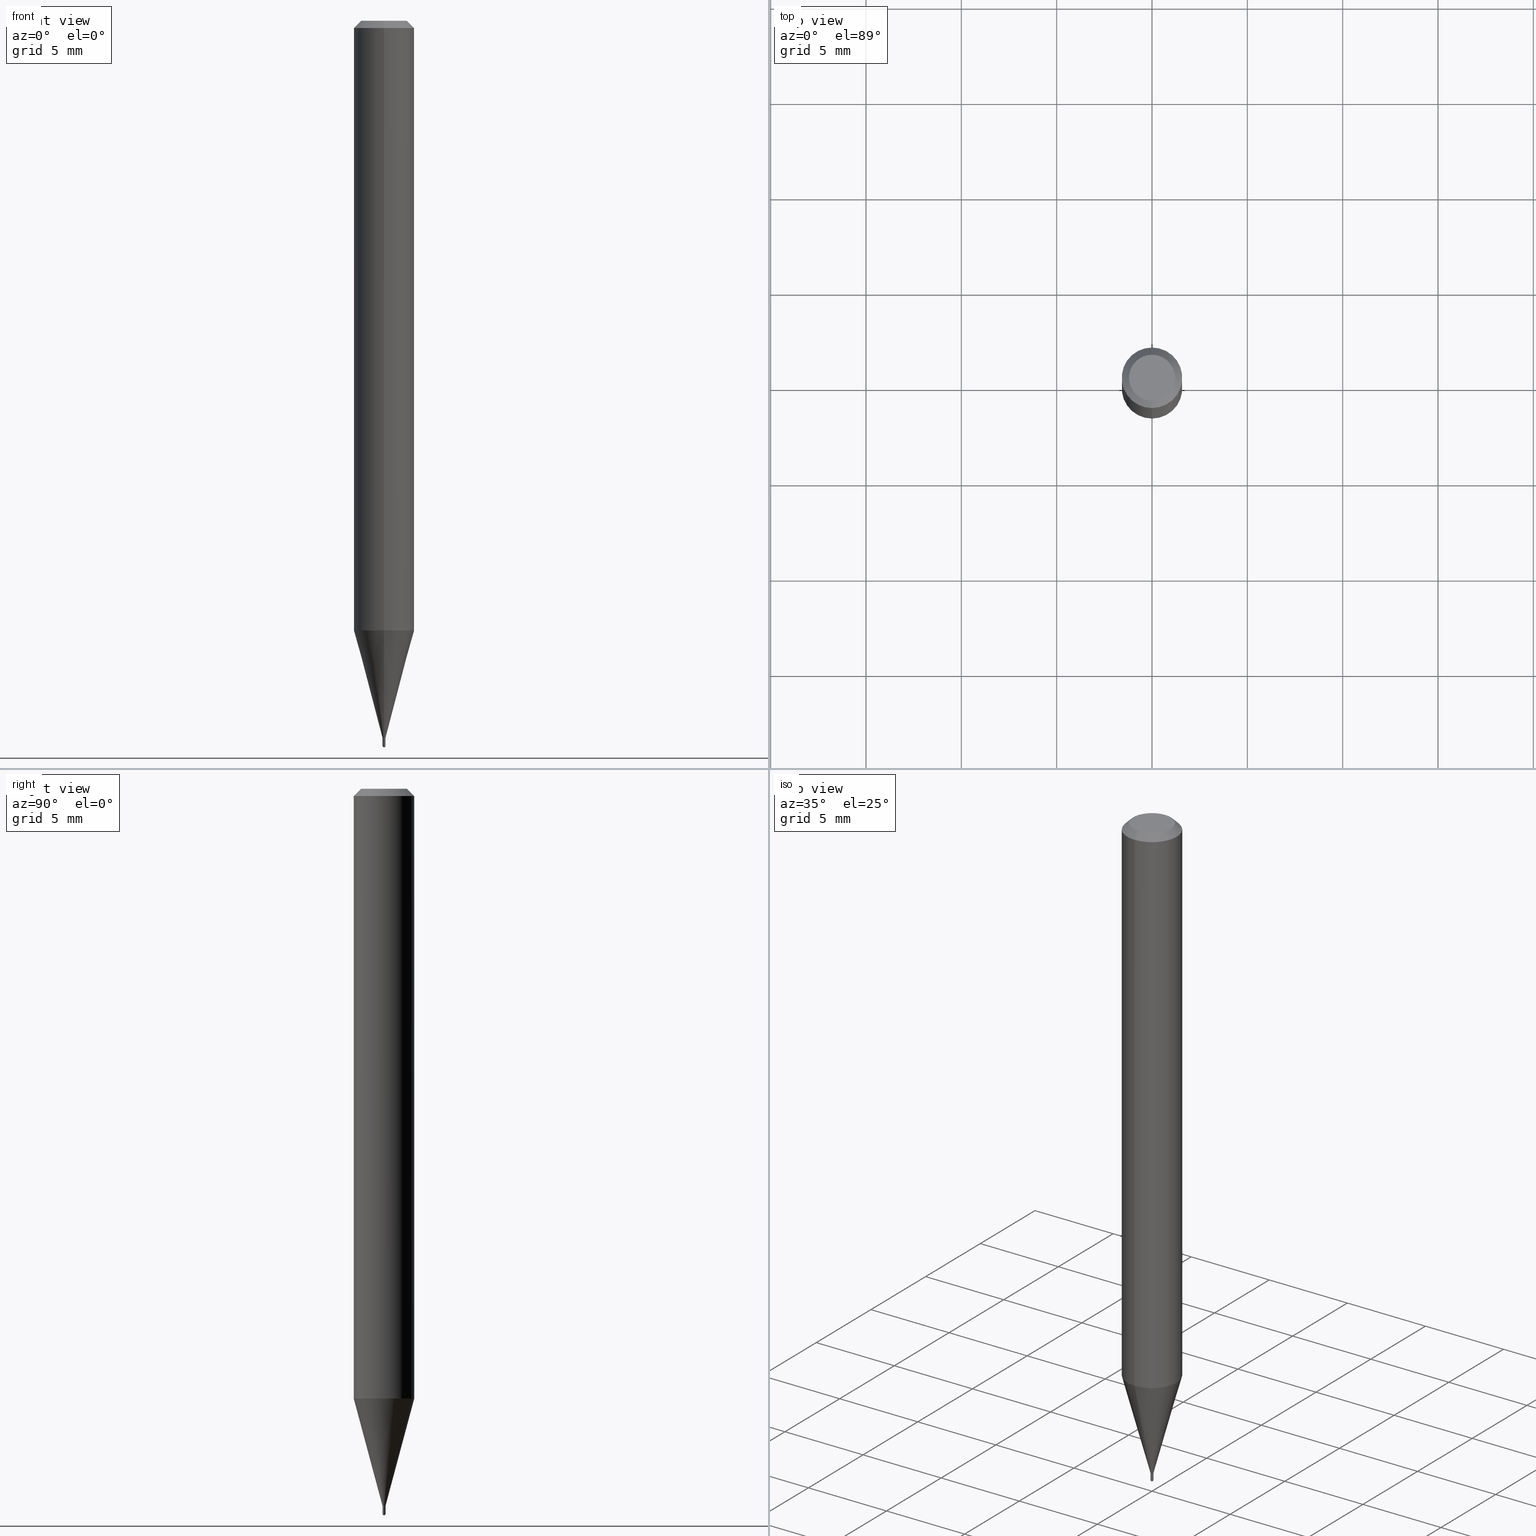
[diagram: canonical four-view strip — front | top / right | iso, engineering-drawing reading convention]
A machine part, canonical four-view strip (front | top / right | iso — engineering-drawing reading convention). The complete STEP part file that produces these views, byte-faithful:
ISO-10303-21;
HEADER;
FILE_DESCRIPTION (( 'STEP AP203' ),
    '1' );
FILE_NAME ('00670.STEP',
    '2024-03-07T18:00:03',
    ( '' ),
    ( '' ),
    'SwSTEP 2.0',
    'SolidWorks 2023',
    '' );
FILE_SCHEMA (( 'CONFIG_CONTROL_DESIGN' ));
ENDSEC;

DATA;
#1 = VERTEX_POINT ( 'NONE', #365 ) ;
#2 = ADVANCED_FACE ( 'NONE', ( #293 ), #71, .T. ) ;
#3 = PERSON_AND_ORGANIZATION ( #469, #131 ) ;
#4 = LINE ( 'NONE', #49, #209 ) ;
#5 = DIRECTION ( 'NONE',  ( -2.445474316170176047E-29, 3.491473448230960175E-15, 1.000000000000000000 ) ) ;
#6 = EDGE_CURVE ( 'NONE', #330, #99, #444, .T. ) ;
#7 = CC_DESIGN_APPROVAL ( #362, ( #429 ) ) ;
#8 = PERSON_AND_ORGANIZATION ( #469, #131 ) ;
#9 = DIRECTION ( 'NONE',  ( -2.445474316170176047E-29, 3.491473448230960175E-15, 1.000000000000000000 ) ) ;
#10 = COORDINATED_UNIVERSAL_TIME_OFFSET ( 5, 0, .BEHIND. ) ;
#11 = ORIENTED_EDGE ( 'NONE', *, *, #162, .F. ) ;
#12 = CARTESIAN_POINT ( 'NONE',  ( 0.003000000000000000496, -2.094888803305880395E-17, 1.462853032738780834E-31 ) ) ;
#13 = SPHERICAL_SURFACE ( 'NONE', #159, 0.002999999999999970572 ) ;
#14 = CIRCLE ( 'NONE', #306, 0.003000000000000000062 ) ;
#15 = AXIS2_PLACEMENT_3D ( 'NONE', #277, #82, #388 ) ;
#16 = VERTEX_POINT ( 'NONE', #298 ) ;
#17 = CARTESIAN_POINT ( 'NONE',  ( 3.646202205409732570E-29, -5.205786911312362704E-15, -1.491000000000000103 ) ) ;
#18 = ORIENTED_EDGE ( 'NONE', *, *, #222, .T. ) ;
#19 = CARTESIAN_POINT ( 'NONE',  ( 3.660866802859150889E-29, -5.226747564248190733E-15, -1.497000000000000552 ) ) ;
#20 = DIRECTION ( 'NONE',  ( -2.445474316170176327E-29, 3.491473448230960570E-15, 1.000000000000000000 ) ) ;
#21 = FACE_OUTER_BOUND ( 'NONE', #370, .T. ) ;
#22 = ORIENTED_EDGE ( 'NONE', *, *, #258, .T. ) ;
#23 = FACE_OUTER_BOUND ( 'NONE', #470, .T. ) ;
#24 = DIRECTION ( 'NONE',  ( -6.982962677686264344E-15, -1.000000000000000000, 0.000000000000000000 ) ) ;
#25 = DIRECTION ( 'NONE',  ( -6.982962677686265922E-15, -1.000000000000000000, 0.000000000000000000 ) ) ;
#26 = ORIENTED_EDGE ( 'NONE', *, *, #311, .F. ) ;
#27 = CIRCLE ( 'NONE', #247, 0.002999999999999924602 ) ;
#28 = CONICAL_SURFACE ( 'NONE', #320, 0.06250000000000000000, 0.7853981633974483900 ) ;
#29 = EDGE_CURVE ( 'NONE', #292, #197, #105, .T. ) ;
#30 = FACE_OUTER_BOUND ( 'NONE', #219, .T. ) ;
#31 = DIRECTION ( 'NONE',  ( -2.445468806185136597E-29, 3.491481338843145583E-15, 1.000000000000000000 ) ) ;
#32 = ORIENTED_EDGE ( 'NONE', *, *, #295, .F. ) ;
#33 = DIRECTION ( 'NONE',  ( -4.851104656540964275E-15, -0.7071067811865500152, -0.7071067811865450192 ) ) ;
#34 = CYLINDRICAL_SURFACE ( 'NONE', #450, 0.06250000000000000000 ) ;
#35 = CARTESIAN_POINT ( 'NONE',  ( 0.000000000000000000, 0.000000000000000000, 0.000000000000000000 ) ) ;
#36 = CYLINDRICAL_SURFACE ( 'NONE', #396, 0.003000000000000000496 ) ;
#37 = APPROVAL ( #246, 'UNSPECIFIED' ) ;
#38 = CONICAL_SURFACE ( 'NONE', #90, 0.002500000000000000052, 0.7853981633974739252 ) ;
#39 = LINE ( 'NONE', #86, #260 ) ;
#40 = CIRCLE ( 'NONE', #150, 0.003000000000000000496 ) ;
#41 = DIRECTION ( 'NONE',  ( -2.445474316170176047E-29, 3.491473448230960175E-15, 1.000000000000000000 ) ) ;
#42 = ORIENTED_EDGE ( 'NONE', *, *, #6, .F. ) ;
#43 = ADVANCED_FACE ( 'NONE', ( #23 ), #180, .T. ) ;
#44 = DIRECTION ( 'NONE',  ( -6.982962677686264344E-15, -1.000000000000000000, 0.000000000000000000 ) ) ;
#45 = ORIENTED_EDGE ( 'NONE', *, *, #215, .T. ) ;
#46 = CALENDAR_DATE ( 2024, 7, 3 ) ;
#47 = CARTESIAN_POINT ( 'NONE',  ( 2.131628207280246368E-17, 0.002999999999999924168, -1.047442034469261669E-17 ) ) ;
#48 = CARTESIAN_POINT ( 'NONE',  ( 3.621747462248030591E-29, -5.170872176830052333E-15, -1.481000000000000094 ) ) ;
#49 = CARTESIAN_POINT ( 'NONE',  ( -2.094888803302204488E-17, -0.003000000000005094512, -1.481000000000000094 ) ) ;
#50 = DATE_TIME_ROLE ( 'creation_date' ) ;
#51 = CARTESIAN_POINT ( 'NONE',  ( -3.773273898774340269E-16, -0.04749999999999999362, 1.569842943950606882E-16 ) ) ;
#52 = DIRECTION ( 'NONE',  ( -1.807323732225330928E-15, -0.2588190451025182970, 0.9659258262890689783 ) ) ;
#53 = AXIS2_PLACEMENT_3D ( 'NONE', #137, #223, #25 ) ;
#54 = APPROVAL_DATE_TIME ( #483, #37 ) ;
#55 = PERSON_AND_ORGANIZATION_ROLE ( 'design_supplier' ) ;
#56 = CIRCLE ( 'NONE', #160, 0.003000000000000000062 ) ;
#57 = ADVANCED_FACE ( 'NONE', ( #467 ), #352, .F. ) ;
#58 = CC_DESIGN_PERSON_AND_ORGANIZATION_ASSIGNMENT ( #92, #285, ( #427 ) ) ;
#59 = DIRECTION ( 'NONE',  ( -6.982962677686265922E-15, -1.000000000000000000, 4.370956789862821150E-15 ) ) ;
#60 = EDGE_CURVE ( 'NONE', #176, #330, #39, .T. ) ;
#61 = ORIENTED_EDGE ( 'NONE', *, *, #282, .T. ) ;
#62 = CIRCLE ( 'NONE', #319, 0.06250000000000000000 ) ;
#63 = VECTOR ( 'NONE', #419, 39.37007874015748143 ) ;
#64 = VERTEX_POINT ( 'NONE', #51 ) ;
#65 = DIRECTION ( 'NONE',  ( 6.982962677686265922E-15, 1.000000000000000000, -3.483106191921935554E-15 ) ) ;
#66 = VERTEX_POINT ( 'NONE', #478 ) ;
#67 = CARTESIAN_POINT ( 'NONE',  ( -0.003000000000000000496, 2.131628207280300910E-17, -1.475680527076472188E-31 ) ) ;
#68 = CARTESIAN_POINT ( 'NONE',  ( 1.776356839403896518E-17, 0.002499999999994794147, -1.491000000000000103 ) ) ;
#69 = DIRECTION ( 'NONE',  ( 1.000000000000000000, -6.982962677686332186E-15, 0.000000000000000000 ) ) ;
#70 = ORIENTED_EDGE ( 'NONE', *, *, #415, .T. ) ;
#71 = CYLINDRICAL_SURFACE ( 'NONE', #426, 0.06250000000000000000 ) ;
#72 = CARTESIAN_POINT ( 'NONE',  ( 3.660610252972396344E-29, -5.227114958287934137E-15, -1.497000000000000108 ) ) ;
#73 = DIRECTION ( 'NONE',  ( -6.982962677686265922E-15, -1.000000000000000000, 3.483106191921935554E-15 ) ) ;
#74 = LINE ( 'NONE', #218, #149 ) ;
#75 = VERTEX_POINT ( 'NONE', #372 ) ;
#76 = VECTOR ( 'NONE', #20, 39.37007874015748143 ) ;
#77 = CIRCLE ( 'NONE', #104, 0.06250000000000000000 ) ;
#78 = DIRECTION ( 'NONE',  ( -6.982962677686265922E-15, -1.000000000000000000, 4.370956789862821150E-15 ) ) ;
#79 = ORIENTED_EDGE ( 'NONE', *, *, #496, .T. ) ;
#80 = FACE_OUTER_BOUND ( 'NONE', #134, .T. ) ;
#81 = CARTESIAN_POINT ( 'NONE',  ( 3.646202205409732570E-29, -5.205786911312362704E-15, -1.491000000000000103 ) ) ;
#82 = DIRECTION ( 'NONE',  ( 2.445474316170175487E-29, -3.491473448230960570E-15, -1.000000000000000000 ) ) ;
#83 = ORIENTED_EDGE ( 'NONE', *, *, #181, .F. ) ;
#84 = ADVANCED_FACE ( 'NONE', ( #374 ), #472, .T. ) ;
#85 = CIRCLE ( 'NONE', #242, 0.06250000000000000000 ) ;
#86 = CARTESIAN_POINT ( 'NONE',  ( -1.745740669417920106E-17, -0.002500000000005205957, -1.491000000000000103 ) ) ;
#87 = CONICAL_SURFACE ( 'NONE', #473, 0.06250000000000000000, 0.7853981633974483900 ) ;
#88 = CARTESIAN_POINT ( 'NONE',  ( 3.668074934334328744E-29, -5.237405705284591851E-15, -1.500000000000000222 ) ) ;
#89 = EDGE_CURVE ( 'NONE', #75, #382, #421, .T. ) ;
#90 = AXIS2_PLACEMENT_3D ( 'NONE', #274, #310, #269 ) ;
#91 = PERSON_AND_ORGANIZATION ( #469, #131 ) ;
#92 = PERSON_AND_ORGANIZATION ( #469, #131 ) ;
#93 = EDGE_CURVE ( 'NONE', #64, #382, #379, .T. ) ;
#94 = SHAPE_DEFINITION_REPRESENTATION ( #100, #248 ) ;
#95 = CIRCLE ( 'NONE', #400, 0.002500000000000000052 ) ;
#96 = LINE ( 'NONE', #67, #323 ) ;
#97 = DIRECTION ( 'NONE',  ( 1.839019923739601104E-15, 0.2588190451025250693, 0.9659258262890670910 ) ) ;
#98 = DIRECTION ( 'NONE',  ( -7.105427357601001070E-15, -1.000000000000000000, 0.000000000000000000 ) ) ;
#99 = VERTEX_POINT ( 'NONE', #153 ) ;
#100 = PRODUCT_DEFINITION_SHAPE ( 'NONE', 'NONE',  #429 ) ;
#101 = DIRECTION ( 'NONE',  ( -2.445468806185136597E-29, 3.491481338843145583E-15, 1.000000000000000000 ) ) ;
#102 = VECTOR ( 'NONE', #97, 39.37007874015748143 ) ;
#103 = DIRECTION ( 'NONE',  ( 1.000000000000000000, -6.982962677686331397E-15, 0.000000000000000000 ) ) ;
#104 = AXIS2_PLACEMENT_3D ( 'NONE', #214, #249, #59 ) ;
#105 = LINE ( 'NONE', #68, #405 ) ;
#106 = DIRECTION ( 'NONE',  ( -2.445474316170176047E-29, 3.491473448230960175E-15, 1.000000000000000000 ) ) ;
#107 = ADVANCED_FACE ( 'NONE', ( #476 ), #38, .T. ) ;
#108 = CARTESIAN_POINT ( 'NONE',  ( 3.660610252972396344E-29, -5.227114958287934137E-15, -1.497000000000000108 ) ) ;
#109 = ORIENTED_EDGE ( 'NONE', *, *, #486, .F. ) ;
#110 = LINE ( 'NONE', #12, #63 ) ;
#111 = ORIENTED_EDGE ( 'NONE', *, *, #145, .F. ) ;
#112 = EDGE_LOOP ( 'NONE', ( #503, #213, #318, #460 ) ) ;
#113 = AXIS2_PLACEMENT_3D ( 'NONE', #17, #182, #139 ) ;
#114 = AXIS2_PLACEMENT_3D ( 'NONE', #229, #510, #341 ) ;
#115 = DIRECTION ( 'NONE',  ( -2.445468806185136597E-29, 3.491481338843145583E-15, 1.000000000000000000 ) ) ;
#116 = DIRECTION ( 'NONE',  ( -2.445474316170176047E-29, 3.491473448230960175E-15, 1.000000000000000000 ) ) ;
#117 = EDGE_CURVE ( 'NONE', #197, #330, #27, .T. ) ;
#118 = PERSON_AND_ORGANIZATION ( #469, #131 ) ;
#119 = ORIENTED_EDGE ( 'NONE', *, *, #125, .F. ) ;
#120 = EDGE_LOOP ( 'NONE', ( #193, #45, #111, #83 ) ) ;
#121 = CALENDAR_DATE ( 2024, 7, 3 ) ;
#122 = CLOSED_SHELL ( 'NONE', ( #265, #165, #307, #284, #395 ) ) ;
#123 = CIRCLE ( 'NONE', #418, 0.002999999999999970572 ) ;
#124 = ORIENTED_EDGE ( 'NONE', *, *, #441, .T. ) ;
#125 = EDGE_CURVE ( 'NONE', #197, #381, #239, .T. ) ;
#126 = DIRECTION ( 'NONE',  ( -2.445474316170176047E-29, 3.491473448230960175E-15, 1.000000000000000000 ) ) ;
#127 = CARTESIAN_POINT ( 'NONE',  ( -0.003000000000000000062, -5.194956838158857898E-15, -1.491000000000000103 ) ) ;
#128 = DATE_AND_TIME ( #244, #451 ) ;
#129 = CARTESIAN_POINT ( 'NONE',  ( 2.131628207283867732E-17, 0.002999999999994752958, -1.481000000000000094 ) ) ;
#130 = VECTOR ( 'NONE', #458, 39.37007874015748143 ) ;
#131 = ORGANIZATION ( 'UNSPECIFIED', 'UNSPECIFIED', '' ) ;
#132 = APPLICATION_CONTEXT ( 'configuration controlled 3d designs of mechanical parts and assemblies' ) ;
#133 = CARTESIAN_POINT ( 'NONE',  ( 3.646193990022038953E-29, -5.205798676215130324E-15, -1.491000000000000103 ) ) ;
#134 = EDGE_LOOP ( 'NONE', ( #232, #491, #490, #257 ) ) ;
#135 = CARTESIAN_POINT ( 'NONE',  ( 3.660610252972396344E-29, -5.227114958287934137E-15, -1.497000000000000108 ) ) ;
#136 = CARTESIAN_POINT ( 'NONE',  ( -2.094888803305826777E-17, -0.002999999999999924168, 1.047442034469261669E-17 ) ) ;
#137 = CARTESIAN_POINT ( 'NONE',  ( 3.646202205409732570E-29, -5.205786911312362704E-15, -1.491000000000000103 ) ) ;
#138 = CONICAL_SURFACE ( 'NONE', #53, 0.002500000000000000052, 0.7853981633974739252 ) ;
#139 = DIRECTION ( 'NONE',  ( -6.982962677686265922E-15, -1.000000000000000000, 0.000000000000000000 ) ) ;
#140 = EDGE_CURVE ( 'NONE', #66, #75, #62, .T. ) ;
#141 = FACE_OUTER_BOUND ( 'NONE', #268, .T. ) ;
#142 = EDGE_LOOP ( 'NONE', ( #261, #313, #22, #26 ) ) ;
#143 = FACE_OUTER_BOUND ( 'NONE', #155, .T. ) ;
#144 = EDGE_LOOP ( 'NONE', ( #432, #347 ) ) ;
#145 = EDGE_CURVE ( 'NONE', #16, #1, #287, .T. ) ;
#146 = DIRECTION ( 'NONE',  ( -2.445474316170175487E-29, 3.491473448230960570E-15, 1.000000000000000000 ) ) ;
#147 = DATE_AND_TIME ( #121, #234 ) ;
#148 = ORIENTED_EDGE ( 'NONE', *, *, #245, .F. ) ;
#149 = VECTOR ( 'NONE', #303, 39.37007874015748143 ) ;
#150 = AXIS2_PLACEMENT_3D ( 'NONE', #158, #200, #203 ) ;
#151 =( CONVERSION_BASED_UNIT ( 'INCH', #512 ) LENGTH_UNIT ( ) NAMED_UNIT ( #337 ) );
#152 = ORIENTED_EDGE ( 'NONE', *, *, #474, .T. ) ;
#153 = CARTESIAN_POINT ( 'NONE',  ( -2.094888803302204488E-17, -0.003000000000005094512, -1.481000000000000094 ) ) ;
#154 = DIRECTION ( 'NONE',  ( -6.982962677686264344E-15, -1.000000000000000000, 0.000000000000000000 ) ) ;
#155 = EDGE_LOOP ( 'NONE', ( #152, #187, #32, #385, #173 ) ) ;
#156 = CARTESIAN_POINT ( 'NONE',  ( -4.287811248607203282E-16, -0.06250000000000005551, -0.01499999999999979128 ) ) ;
#157 = ADVANCED_FACE ( 'NONE', ( #80 ), #34, .T. ) ;
#158 = CARTESIAN_POINT ( 'NONE',  ( 3.660866802859150889E-29, -5.226747564248190733E-15, -1.497000000000000552 ) ) ;
#159 = AXIS2_PLACEMENT_3D ( 'NONE', #409, #177, #494 ) ;
#160 = AXIS2_PLACEMENT_3D ( 'NONE', #368, #101, #497 ) ;
#161 = EDGE_CURVE ( 'NONE', #381, #99, #346, .T. ) ;
#162 = EDGE_CURVE ( 'NONE', #99, #75, #4, .T. ) ;
#163 = CARTESIAN_POINT ( 'NONE',  ( 0.000000000000000000, 0.000000000000000000, 0.000000000000000000 ) ) ;
#164 = CARTESIAN_POINT ( 'NONE',  ( 2.166860056863068108E-46, -3.093687921620829248E-32, -8.860694395909901927E-18 ) ) ;
#165 = ADVANCED_FACE ( 'NONE', ( #201 ), #13, .T. ) ;
#166 = AXIS2_PLACEMENT_3D ( 'NONE', #290, #420, #349 ) ;
#167 = APPROVAL_DATE_TIME ( #283, #343 ) ;
#168 = CIRCLE ( 'NONE', #171, 0.002999999999999924602 ) ;
#169 = CIRCLE ( 'NONE', #113, 0.002500000000000000052 ) ;
#170 = CARTESIAN_POINT ( 'NONE',  ( 3.668211474255266646E-31, -5.237210172346444084E-17, -0.01500000000000000812 ) ) ;
#171 = AXIS2_PLACEMENT_3D ( 'NONE', #275, #41, #355 ) ;
#172 = EDGE_CURVE ( 'NONE', #342, #267, #96, .T. ) ;
#173 = ORIENTED_EDGE ( 'NONE', *, *, #145, .T. ) ;
#174 = PRODUCT ( '00670', '00670', '', ( #312 ) ) ;
#175 = ORIENTED_EDGE ( 'NONE', *, *, #245, .T. ) ;
#176 = VERTEX_POINT ( 'NONE', #220 ) ;
#177 = DIRECTION ( 'NONE',  ( -1.000000000000000000, 6.982962677686265922E-15, -4.883557194083112901E-29 ) ) ;
#178 = CARTESIAN_POINT ( 'NONE',  ( 2.094888803309526104E-17, 0.002999999999994793724, -1.491000000000000103 ) ) ;
#179 = ORIENTED_EDGE ( 'NONE', *, *, #211, .T. ) ;
#180 = CYLINDRICAL_SURFACE ( 'NONE', #360, 0.002999999999999924168 ) ;
#181 = EDGE_CURVE ( 'NONE', #387, #16, #389, .T. ) ;
#182 = DIRECTION ( 'NONE',  ( -2.445474316170176047E-29, 3.491473448230960175E-15, 1.000000000000000000 ) ) ;
#183 = AXIS2_PLACEMENT_3D ( 'NONE', #315, #146, #386 ) ;
#184 = AXIS2_PLACEMENT_3D ( 'NONE', #354, #321, #154 ) ;
#185 = CC_DESIGN_PERSON_AND_ORGANIZATION_ASSIGNMENT ( #270, #237, ( #429 ) ) ;
#186 = DIRECTION ( 'NONE',  ( 2.445474316170176047E-29, -3.491473448230960175E-15, -1.000000000000000000 ) ) ;
#187 = ORIENTED_EDGE ( 'NONE', *, *, #172, .T. ) ;
#188 = ORIENTED_EDGE ( 'NONE', *, *, #215, .F. ) ;
#189 = ORIENTED_EDGE ( 'NONE', *, *, #462, .F. ) ;
#190 = CARTESIAN_POINT ( 'NONE',  ( 3.644979468251647751E-29, -5.204041174588247580E-15, -1.490500000000000158 ) ) ;
#191 = CARTESIAN_POINT ( 'NONE',  ( 0.000000000000000000, 0.000000000000000000, 0.000000000000000000 ) ) ;
#192 = CARTESIAN_POINT ( 'NONE',  ( 0.000000000000000000, 0.000000000000000000, 0.000000000000000000 ) ) ;
#193 = ORIENTED_EDGE ( 'NONE', *, *, #415, .F. ) ;
#194 =( LENGTH_UNIT ( ) NAMED_UNIT ( * ) SI_UNIT ( $, .METRE. ) );
#195 = AXIS2_PLACEMENT_3D ( 'NONE', #475, #358, #278 ) ;
#196 = LOCAL_TIME ( 13, 0, 3.000000000000000000, #391 ) ;
#197 = VERTEX_POINT ( 'NONE', #430 ) ;
#198 =( NAMED_UNIT ( * ) PLANE_ANGLE_UNIT ( ) SI_UNIT ( $, .RADIAN. ) );
#199 = CC_DESIGN_PERSON_AND_ORGANIZATION_ASSIGNMENT ( #91, #357, ( #206 ) ) ;
#200 = DIRECTION ( 'NONE',  ( -2.445468806185136597E-29, 3.491481338843145583E-15, 1.000000000000000000 ) ) ;
#201 = FACE_OUTER_BOUND ( 'NONE', #302, .T. ) ;
#202 = ADVANCED_FACE ( 'NONE', ( #392 ), #226, .T. ) ;
#203 = DIRECTION ( 'NONE',  ( 1.000000000000000000, -6.982962677686331397E-15, 0.000000000000000000 ) ) ;
#204 = UNCERTAINTY_MEASURE_WITH_UNIT (LENGTH_MEASURE( 1.000000000000000082E-05 ), #151, 'distance_accuracy_value', 'NONE');
#205 = CIRCLE ( 'NONE', #487, 0.04749999999999999362 ) ;
#206 = SECURITY_CLASSIFICATION ( '', '', #437 ) ;
#207 = COORDINATED_UNIVERSAL_TIME_OFFSET ( 5, 0, .BEHIND. ) ;
#208 = APPROVAL_ROLE ( '' ) ;
#209 = VECTOR ( 'NONE', #52, 39.37007874015748143 ) ;
#210 = CC_DESIGN_APPROVAL ( #37, ( #206 ) ) ;
#211 = EDGE_CURVE ( 'NONE', #381, #66, #217, .T. ) ;
#212 = CARTESIAN_POINT ( 'NONE',  ( 4.364351673553919652E-16, 0.06249999999999995143, -0.01500000000000022669 ) ) ;
#213 = ORIENTED_EDGE ( 'NONE', *, *, #161, .T. ) ;
#214 = CARTESIAN_POINT ( 'NONE',  ( 3.078712715653197173E-29, -4.395565976856553855E-15, -1.258942976949652515 ) ) ;
#215 = EDGE_CURVE ( 'NONE', #254, #1, #406, .T. ) ;
#216 =( GEOMETRIC_REPRESENTATION_CONTEXT ( 3 ) GLOBAL_UNCERTAINTY_ASSIGNED_CONTEXT ( ( #204 ) ) GLOBAL_UNIT_ASSIGNED_CONTEXT ( ( #151, #198, #231 ) ) REPRESENTATION_CONTEXT ( 'NONE', 'WORKASPACE' ) );
#217 = LINE ( 'NONE', #129, #102 ) ;
#218 = CARTESIAN_POINT ( 'NONE',  ( 4.440892098500625669E-16, 0.06250000000000000000, -2.182170905144350109E-16 ) ) ;
#219 = EDGE_LOOP ( 'NONE', ( #236, #61, #511, #340 ) ) ;
#220 = CARTESIAN_POINT ( 'NONE',  ( -1.745740669417920106E-17, -0.002500000000005205957, -1.491000000000000103 ) ) ;
#221 = DIRECTION ( 'NONE',  ( 5.024295867788190974E-15, 0.7071067811865681119, 0.7071067811865270336 ) ) ;
#222 = EDGE_CURVE ( 'NONE', #342, #387, #481, .T. ) ;
#223 = DIRECTION ( 'NONE',  ( -2.445474316170176047E-29, 3.491473448230960175E-15, 1.000000000000000000 ) ) ;
#224 = ORIENTED_EDGE ( 'NONE', *, *, #125, .T. ) ;
#225 = DIRECTION ( 'NONE',  ( 2.438088387897960049E-29, -3.491481338843145188E-15, -1.000000000000000000 ) ) ;
#226 = CONICAL_SURFACE ( 'NONE', #273, 0.002999999999999923735, 0.2617993877991502960 ) ;
#227 = APPROVAL_PERSON_ORGANIZATION ( #3, #343, #208 ) ;
#228 = CARTESIAN_POINT ( 'NONE',  ( 3.660866802859150889E-29, -5.226747564248190733E-15, -1.497000000000000552 ) ) ;
#229 = CARTESIAN_POINT ( 'NONE',  ( 3.668211474255266646E-31, -5.237210172346444084E-17, -0.01500000000000000812 ) ) ;
#230 = ORIENTED_EDGE ( 'NONE', *, *, #412, .T. ) ;
#231 =( NAMED_UNIT ( * ) SI_UNIT ( $, .STERADIAN. ) SOLID_ANGLE_UNIT ( ) );
#232 = ORIENTED_EDGE ( 'NONE', *, *, #433, .T. ) ;
#233 = AXIS2_PLACEMENT_3D ( 'NONE', #19, #331, #103 ) ;
#234 = LOCAL_TIME ( 13, 0, 3.000000000000000000, #468 ) ;
#235 = CARTESIAN_POINT ( 'NONE',  ( -4.364351673553916201E-16, -0.06250000000000000000, 2.182170905144350109E-16 ) ) ;
#236 = ORIENTED_EDGE ( 'NONE', *, *, #29, .F. ) ;
#237 = PERSON_AND_ORGANIZATION_ROLE ( 'creator' ) ;
#238 = ORIENTED_EDGE ( 'NONE', *, *, #89, .T. ) ;
#239 = LINE ( 'NONE', #47, #130 ) ;
#240 = PERSON_AND_ORGANIZATION ( #469, #131 ) ;
#241 = CC_DESIGN_PERSON_AND_ORGANIZATION_ASSIGNMENT ( #118, #507, ( #174 ) ) ;
#242 = AXIS2_PLACEMENT_3D ( 'NONE', #402, #9, #73 ) ;
#243 = DIRECTION ( 'NONE',  ( -6.982962677686266711E-15, -1.000000000000000000, 3.491473448230960175E-15 ) ) ;
#244 = CALENDAR_DATE ( 2024, 7, 3 ) ;
#245 = EDGE_CURVE ( 'NONE', #404, #64, #205, .T. ) ;
#246 = APPROVAL_STATUS ( 'not_yet_approved' ) ;
#247 = AXIS2_PLACEMENT_3D ( 'NONE', #190, #423, #314 ) ;
#248 = ADVANCED_BREP_SHAPE_REPRESENTATION ( '00670', ( #411, #436, #397 ), #216 ) ;
#249 = DIRECTION ( 'NONE',  ( -2.445474316170176047E-29, 3.491473448230960175E-15, 1.000000000000000000 ) ) ;
#250 = CARTESIAN_POINT ( 'NONE',  ( -0.003000000000000000496, -5.194956838158857898E-15, -1.497000000000000552 ) ) ;
#251 = ORIENTED_EDGE ( 'NONE', *, *, #29, .T. ) ;
#252 = FACE_OUTER_BOUND ( 'NONE', #456, .T. ) ;
#253 = CARTESIAN_POINT ( 'NONE',  ( 0.003000000000000000062, -5.226747564248189155E-15, -1.491000000000000103 ) ) ;
#254 = VERTEX_POINT ( 'NONE', #88 ) ;
#255 = CC_DESIGN_DATE_AND_TIME_ASSIGNMENT ( #471, #50, ( #429 ) ) ;
#256 = CARTESIAN_POINT ( 'NONE',  ( 4.440892098500935790E-16, 0.06249999999999995143, -0.01500000000000022669 ) ) ;
#257 = ORIENTED_EDGE ( 'NONE', *, *, #89, .F. ) ;
#258 = EDGE_CURVE ( 'NONE', #382, #350, #85, .T. ) ;
#259 = DIRECTION ( 'NONE',  ( -6.982962677686266711E-15, -1.000000000000000000, 3.491473448230960175E-15 ) ) ;
#260 = VECTOR ( 'NONE', #484, 39.37007874015748143 ) ;
#261 = ORIENTED_EDGE ( 'NONE', *, *, #324, .F. ) ;
#262 = AXIS2_PLACEMENT_3D ( 'NONE', #296, #106, #259 ) ;
#263 = ADVANCED_FACE ( 'NONE', ( #252 ), #375, .T. ) ;
#264 = ORIENTED_EDGE ( 'NONE', *, *, #222, .F. ) ;
#265 = ADVANCED_FACE ( 'NONE', ( #143 ), #36, .T. ) ;
#266 = APPROVAL_DATE_TIME ( #147, #362 ) ;
#267 = VERTEX_POINT ( 'NONE', #127 ) ;
#268 = EDGE_LOOP ( 'NONE', ( #425, #18, #276, #230, #449 ) ) ;
#269 = DIRECTION ( 'NONE',  ( -6.982962677686265922E-15, -1.000000000000000000, 0.000000000000000000 ) ) ;
#270 = PERSON_AND_ORGANIZATION ( #469, #131 ) ;
#271 = ORIENTED_EDGE ( 'NONE', *, *, #295, .T. ) ;
#272 = EDGE_CURVE ( 'NONE', #66, #350, #74, .T. ) ;
#273 = AXIS2_PLACEMENT_3D ( 'NONE', #48, #356, #24 ) ;
#274 = CARTESIAN_POINT ( 'NONE',  ( 3.646202205409732570E-29, -5.205786911312362704E-15, -1.491000000000000103 ) ) ;
#275 = CARTESIAN_POINT ( 'NONE',  ( 3.644979468251647751E-29, -5.204041174588247580E-15, -1.490500000000000158 ) ) ;
#276 = ORIENTED_EDGE ( 'NONE', *, *, #181, .T. ) ;
#277 = CARTESIAN_POINT ( 'NONE',  ( 3.316907271900976096E-16, 0.04749999999999999362, -1.702753359889255758E-16 ) ) ;
#278 = DIRECTION ( 'NONE',  ( 1.000000000000000000, -6.982962677686331397E-15, 0.000000000000000000 ) ) ;
#279 = VECTOR ( 'NONE', #33, 39.37007874015748143 ) ;
#280 = DIRECTION ( 'NONE',  ( -2.445474316170176047E-29, 3.491473448230960175E-15, 1.000000000000000000 ) ) ;
#281 = CIRCLE ( 'NONE', #184, 0.002999999999999923735 ) ;
#282 = EDGE_CURVE ( 'NONE', #292, #176, #169, .T. ) ;
#283 = DATE_AND_TIME ( #322, #288 ) ;
#284 = ADVANCED_FACE ( 'NONE', ( #489 ), #335, .T. ) ;
#285 = PERSON_AND_ORGANIZATION_ROLE ( 'creator' ) ;
#286 = CARTESIAN_POINT ( 'NONE',  ( 0.000000000000000000, 0.000000000000000000, 0.000000000000000000 ) ) ;
#287 = CIRCLE ( 'NONE', #299, 0.003000000000000000496 ) ;
#288 = LOCAL_TIME ( 13, 0, 3.000000000000000000, #10 ) ;
#289 = CC_DESIGN_DATE_AND_TIME_ASSIGNMENT ( #128, #479, ( #206 ) ) ;
#290 = CARTESIAN_POINT ( 'NONE',  ( 3.621747462248030591E-29, -5.170872176830052333E-15, -1.481000000000000094 ) ) ;
#291 = DIRECTION ( 'NONE',  ( 4.937700262164548042E-15, 0.7071067811865451302, -0.7071067811865499042 ) ) ;
#292 = VERTEX_POINT ( 'NONE', #452 ) ;
#293 = FACE_OUTER_BOUND ( 'NONE', #309, .T. ) ;
#294 = DIRECTION ( 'NONE',  ( 6.982962677686265922E-15, 1.000000000000000000, 0.000000000000000000 ) ) ;
#295 = EDGE_CURVE ( 'NONE', #328, #267, #14, .T. ) ;
#296 = CARTESIAN_POINT ( 'NONE',  ( 2.166860056863068108E-46, -3.093687921620829248E-32, -8.860694395909901927E-18 ) ) ;
#297 = ORIENTED_EDGE ( 'NONE', *, *, #433, .F. ) ;
#298 = CARTESIAN_POINT ( 'NONE',  ( 0.003000000000000000496, -5.237222008264719754E-15, -1.497000000000000552 ) ) ;
#299 = AXIS2_PLACEMENT_3D ( 'NONE', #228, #31, #506 ) ;
#300 = CC_DESIGN_APPROVAL ( #343, ( #427 ) ) ;
#301 = DIRECTION ( 'NONE',  ( -2.445468806185136597E-29, 3.491481338843145583E-15, 1.000000000000000000 ) ) ;
#302 = EDGE_LOOP ( 'NONE', ( #188, #70, #264, #454 ) ) ;
#303 = DIRECTION ( 'NONE',  ( -2.445474316170176327E-29, 3.491473448230960570E-15, 1.000000000000000000 ) ) ;
#304 = CARTESIAN_POINT ( 'NONE',  ( 0.000000000000000000, 0.000000000000000000, 0.000000000000000000 ) ) ;
#305 = DIRECTION ( 'NONE',  ( 1.000000000000000000, 0.000000000000000000, 0.000000000000000000 ) ) ;
#306 = AXIS2_PLACEMENT_3D ( 'NONE', #133, #301, #69 ) ;
#307 = ADVANCED_FACE ( 'NONE', ( #504 ), #413, .F. ) ;
#308 = DIRECTION ( 'NONE',  ( 0.000000000000000000, 0.000000000000000000, 1.000000000000000000 ) ) ;
#309 = EDGE_LOOP ( 'NONE', ( #351, #493, #238, #189 ) ) ;
#310 = DIRECTION ( 'NONE',  ( -2.445474316170176047E-29, 3.491473448230960175E-15, 1.000000000000000000 ) ) ;
#311 = EDGE_CURVE ( 'NONE', #404, #350, #376, .T. ) ;
#312 = MECHANICAL_CONTEXT ( 'NONE', #480, 'mechanical' ) ;
#313 = ORIENTED_EDGE ( 'NONE', *, *, #93, .T. ) ;
#314 = DIRECTION ( 'NONE',  ( -6.982962677686265922E-15, -1.000000000000000000, 0.000000000000000000 ) ) ;
#315 = CARTESIAN_POINT ( 'NONE',  ( 3.646202205409732570E-29, -5.205786911312362704E-15, -1.491000000000000103 ) ) ;
#316 = DIRECTION ( 'NONE',  ( -6.982962677686265922E-15, -1.000000000000000000, 3.491473448230960175E-15 ) ) ;
#317 = APPLICATION_PROTOCOL_DEFINITION ( 'international standard', 'config_control_design', 1994, #132 ) ;
#318 = ORIENTED_EDGE ( 'NONE', *, *, #162, .T. ) ;
#319 = AXIS2_PLACEMENT_3D ( 'NONE', #416, #116, #78 ) ;
#320 = AXIS2_PLACEMENT_3D ( 'NONE', #170, #457, #502 ) ;
#321 = DIRECTION ( 'NONE',  ( -2.445474316170176047E-29, 3.491473448230960175E-15, 1.000000000000000000 ) ) ;
#322 = CALENDAR_DATE ( 2024, 7, 3 ) ;
#323 = VECTOR ( 'NONE', #448, 39.37007874015748143 ) ;
#324 = EDGE_CURVE ( 'NONE', #64, #404, #361, .T. ) ;
#325 = VECTOR ( 'NONE', #383, 39.37007874015748143 ) ;
#326 = CIRCLE ( 'NONE', #114, 0.06250000000000000000 ) ;
#327 = DIRECTION ( 'NONE',  ( -1.000000000000000000, 7.105427357601001070E-15, -4.926315508542082329E-29 ) ) ;
#328 = VERTEX_POINT ( 'NONE', #253 ) ;
#329 = CARTESIAN_POINT ( 'NONE',  ( -4.364351673553912750E-16, -0.06250000000000005551, -0.01499999999999979128 ) ) ;
#330 = VERTEX_POINT ( 'NONE', #410 ) ;
#331 = DIRECTION ( 'NONE',  ( -2.445468806185136597E-29, 3.491481338843145583E-15, 1.000000000000000000 ) ) ;
#332 = DIRECTION ( 'NONE',  ( 1.000000000000000000, -6.982962677686266711E-15, 4.876176775795935232E-29 ) ) ;
#333 = ADVANCED_FACE ( 'NONE', ( #407 ), #28, .T. ) ;
#334 = CLOSED_SHELL ( 'NONE', ( #43, #107, #333, #157, #84, #202, #2, #359, #482, #57, #338, #263 ) ) ;
#335 = SPHERICAL_SURFACE ( 'NONE', #463, 0.002999999999999970572 ) ;
#336 = CARTESIAN_POINT ( 'NONE',  ( -2.131628207276629009E-17, -0.003000000000005212473, -1.497000000000000552 ) ) ;
#337 = DIMENSIONAL_EXPONENTS ( 1.000000000000000000, 0.000000000000000000, 0.000000000000000000, 0.000000000000000000, 0.000000000000000000, 0.000000000000000000, 0.000000000000000000 ) ;
#338 = ADVANCED_FACE ( 'NONE', ( #30 ), #138, .T. ) ;
#339 = ORIENTED_EDGE ( 'NONE', *, *, #445, .F. ) ;
#340 = ORIENTED_EDGE ( 'NONE', *, *, #117, .F. ) ;
#341 = DIRECTION ( 'NONE',  ( -6.982962677686265922E-15, -1.000000000000000000, 3.483106191921935554E-15 ) ) ;
#342 = VERTEX_POINT ( 'NONE', #250 ) ;
#343 = APPROVAL ( #363, 'UNSPECIFIED' ) ;
#344 = ORIENTED_EDGE ( 'NONE', *, *, #311, .T. ) ;
#345 = APPLICATION_PROTOCOL_DEFINITION ( 'international standard', 'config_control_design', 1994, #480 ) ;
#346 = CIRCLE ( 'NONE', #442, 0.002999999999999923735 ) ;
#347 = ORIENTED_EDGE ( 'NONE', *, *, #282, .F. ) ;
#348 = APPROVAL_PERSON_ORGANIZATION ( #8, #37, #440 ) ;
#349 = DIRECTION ( 'NONE',  ( -6.982962677686264344E-15, -1.000000000000000000, 0.000000000000000000 ) ) ;
#350 = VERTEX_POINT ( 'NONE', #256 ) ;
#351 = ORIENTED_EDGE ( 'NONE', *, *, #272, .F. ) ;
#352 = PLANE ( 'NONE',  #183 ) ;
#353 = EDGE_LOOP ( 'NONE', ( #175, #422 ) ) ;
#354 = CARTESIAN_POINT ( 'NONE',  ( 3.621747462248030591E-29, -5.170872176830052333E-15, -1.481000000000000094 ) ) ;
#355 = DIRECTION ( 'NONE',  ( -6.982962677686265922E-15, -1.000000000000000000, 0.000000000000000000 ) ) ;
#356 = DIRECTION ( 'NONE',  ( -2.445474316170176047E-29, 3.491473448230960175E-15, 1.000000000000000000 ) ) ;
#357 = PERSON_AND_ORGANIZATION_ROLE ( 'classification_officer' ) ;
#358 = DIRECTION ( 'NONE',  ( -2.445468806185136597E-29, 3.491481338843145583E-15, 1.000000000000000000 ) ) ;
#359 = ADVANCED_FACE ( 'NONE', ( #21 ), #87, .T. ) ;
#360 = AXIS2_PLACEMENT_3D ( 'NONE', #191, #390, #424 ) ;
#361 = CIRCLE ( 'NONE', #262, 0.04749999999999999362 ) ;
#362 = APPROVAL ( #431, 'UNSPECIFIED' ) ;
#363 = APPROVAL_STATUS ( 'not_yet_approved' ) ;
#364 = DIRECTION ( 'NONE',  ( -1.000000000000000000, 6.982962677686265922E-15, -4.883557194083112901E-29 ) ) ;
#365 = CARTESIAN_POINT ( 'NONE',  ( 2.094888803309530418E-17, 0.002999999999994758595, -1.497000000000000552 ) ) ;
#366 = EDGE_LOOP ( 'NONE', ( #428, #179, #297, #11 ) ) ;
#367 = AXIS2_PLACEMENT_3D ( 'NONE', #485, #500, #435 ) ;
#368 = CARTESIAN_POINT ( 'NONE',  ( 3.646193990022038953E-29, -5.205798676215130324E-15, -1.491000000000000103 ) ) ;
#369 = EDGE_LOOP ( 'NONE', ( #271, #124 ) ) ;
#370 = EDGE_LOOP ( 'NONE', ( #453, #148, #344, #378 ) ) ;
#371 = DIRECTION ( 'NONE',  ( -2.445474316170176047E-29, 3.491473448230960175E-15, 1.000000000000000000 ) ) ;
#372 = CARTESIAN_POINT ( 'NONE',  ( -4.364351673553607559E-16, -0.06250000000000438538, -1.258942976949652293 ) ) ;
#373 = CYLINDRICAL_SURFACE ( 'NONE', #488, 0.003000000000000000496 ) ;
#374 = FACE_OUTER_BOUND ( 'NONE', #366, .T. ) ;
#375 = CYLINDRICAL_SURFACE ( 'NONE', #367, 0.002999999999999924168 ) ;
#376 = LINE ( 'NONE', #212, #509 ) ;
#377 = DIRECTION ( 'NONE',  ( -1.000000000000000000, 6.982962677686265922E-15, -4.876176775795935793E-29 ) ) ;
#378 = ORIENTED_EDGE ( 'NONE', *, *, #462, .T. ) ;
#379 = LINE ( 'NONE', #156, #279 ) ;
#380 = DIRECTION ( 'NONE',  ( -6.982962677686265922E-15, -1.000000000000000000, 0.000000000000000000 ) ) ;
#381 = VERTEX_POINT ( 'NONE', #446 ) ;
#382 = VERTEX_POINT ( 'NONE', #329 ) ;
#383 = DIRECTION ( 'NONE',  ( -2.445474316170176327E-29, 3.491473448230960570E-15, 1.000000000000000000 ) ) ;
#384 = FACE_OUTER_BOUND ( 'NONE', #353, .T. ) ;
#385 = ORIENTED_EDGE ( 'NONE', *, *, #412, .F. ) ;
#386 = DIRECTION ( 'NONE',  ( -6.982962677686265922E-15, -1.000000000000000000, 3.491473448230960570E-15 ) ) ;
#387 = VERTEX_POINT ( 'NONE', #336 ) ;
#388 = DIRECTION ( 'NONE',  ( 6.982962677686265922E-15, 1.000000000000000000, -3.491473448230960570E-15 ) ) ;
#389 = CIRCLE ( 'NONE', #233, 0.003000000000000000496 ) ;
#390 = DIRECTION ( 'NONE',  ( -2.445474316170176047E-29, 3.491473448230960175E-15, 1.000000000000000000 ) ) ;
#391 = COORDINATED_UNIVERSAL_TIME_OFFSET ( 5, 0, .BEHIND. ) ;
#392 = FACE_OUTER_BOUND ( 'NONE', #112, .T. ) ;
#393 = CARTESIAN_POINT ( 'NONE',  ( 3.621747462248030591E-29, -5.170872176830052333E-15, -1.481000000000000094 ) ) ;
#394 = APPROVAL_ROLE ( '' ) ;
#395 = ADVANCED_FACE ( 'NONE', ( #141 ), #373, .T. ) ;
#396 = AXIS2_PLACEMENT_3D ( 'NONE', #163, #115, #455 ) ;
#397 = AXIS2_PLACEMENT_3D ( 'NONE', #35, #308, #305 ) ;
#398 = COORDINATED_UNIVERSAL_TIME_OFFSET ( 5, 0, .BEHIND. ) ;
#399 = CALENDAR_DATE ( 2024, 7, 3 ) ;
#400 = AXIS2_PLACEMENT_3D ( 'NONE', #81, #465, #380 ) ;
#401 = DIRECTION ( 'NONE',  ( 1.000000000000000000, -6.982962677686265922E-15, 4.883557194083112340E-29 ) ) ;
#402 = CARTESIAN_POINT ( 'NONE',  ( 3.668211474255266646E-31, -5.237210172346444084E-17, -0.01500000000000000812 ) ) ;
#403 = DIRECTION ( 'NONE',  ( 6.982962677686265922E-15, 1.000000000000000000, 0.000000000000000000 ) ) ;
#404 = VERTEX_POINT ( 'NONE', #459 ) ;
#405 = VECTOR ( 'NONE', #221, 39.37007874015748143 ) ;
#406 = CIRCLE ( 'NONE', #417, 0.002999999999999970572 ) ;
#407 = FACE_OUTER_BOUND ( 'NONE', #142, .T. ) ;
#408 = CC_DESIGN_PERSON_AND_ORGANIZATION_ASSIGNMENT ( #439, #55, ( #427 ) ) ;
#409 = CARTESIAN_POINT ( 'NONE',  ( 3.660610252972396344E-29, -5.227114958287934137E-15, -1.497000000000000108 ) ) ;
#410 = CARTESIAN_POINT ( 'NONE',  ( -2.094888803302188156E-17, -0.003000000000005137446, -1.490500000000000158 ) ) ;
#411 = MANIFOLD_SOLID_BREP ( 'Body-Move/Copy2[1]', #122 ) ;
#412 = EDGE_CURVE ( 'NONE', #16, #328, #110, .T. ) ;
#413 = PLANE ( 'NONE',  #434 ) ;
#414 = EDGE_LOOP ( 'NONE', ( #79, #251, #109, #505 ) ) ;
#415 = EDGE_CURVE ( 'NONE', #254, #387, #123, .T. ) ;
#416 = CARTESIAN_POINT ( 'NONE',  ( 3.078712715653197173E-29, -4.395565976856553855E-15, -1.258942976949652515 ) ) ;
#417 = AXIS2_PLACEMENT_3D ( 'NONE', #72, #401, #294 ) ;
#418 = AXIS2_PLACEMENT_3D ( 'NONE', #135, #327, #98 ) ;
#419 = DIRECTION ( 'NONE',  ( -2.445468806185136877E-29, 3.491481338843145188E-15, 1.000000000000000000 ) ) ;
#420 = DIRECTION ( 'NONE',  ( -2.445474316170176047E-29, 3.491473448230960175E-15, 1.000000000000000000 ) ) ;
#421 = LINE ( 'NONE', #235, #325 ) ;
#422 = ORIENTED_EDGE ( 'NONE', *, *, #324, .T. ) ;
#423 = DIRECTION ( 'NONE',  ( -2.445474316170176047E-29, 3.491473448230960175E-15, 1.000000000000000000 ) ) ;
#424 = DIRECTION ( 'NONE',  ( -6.982962677686265922E-15, -1.000000000000000000, 3.491473448230960570E-15 ) ) ;
#425 = ORIENTED_EDGE ( 'NONE', *, *, #172, .F. ) ;
#426 = AXIS2_PLACEMENT_3D ( 'NONE', #286, #371, #495 ) ;
#427 = PRODUCT_DEFINITION_FORMATION_WITH_SPECIFIED_SOURCE ( 'ANY', '', #174, .NOT_KNOWN. ) ;
#428 = ORIENTED_EDGE ( 'NONE', *, *, #445, .T. ) ;
#429 = PRODUCT_DEFINITION ( 'UNKNOWN', '', #427, #461 ) ;
#430 = CARTESIAN_POINT ( 'NONE',  ( 2.131628207283885605E-17, 0.002999999999994711758, -1.490500000000000158 ) ) ;
#431 = APPROVAL_STATUS ( 'not_yet_approved' ) ;
#432 = ORIENTED_EDGE ( 'NONE', *, *, #496, .F. ) ;
#433 = EDGE_CURVE ( 'NONE', #75, #66, #77, .T. ) ;
#434 = AXIS2_PLACEMENT_3D ( 'NONE', #178, #225, #377 ) ;
#435 = DIRECTION ( 'NONE',  ( -6.982962677686265922E-15, -1.000000000000000000, 3.491473448230960570E-15 ) ) ;
#436 = MANIFOLD_SOLID_BREP ( 'Body-Move/Copy2[2]', #334 ) ;
#437 = SECURITY_CLASSIFICATION_LEVEL ( 'unclassified' ) ;
#438 = ORIENTED_EDGE ( 'NONE', *, *, #6, .T. ) ;
#439 = PERSON_AND_ORGANIZATION ( #469, #131 ) ;
#440 = APPROVAL_ROLE ( '' ) ;
#441 = EDGE_CURVE ( 'NONE', #267, #328, #56, .T. ) ;
#442 = AXIS2_PLACEMENT_3D ( 'NONE', #393, #280, #44 ) ;
#443 = APPROVAL_PERSON_ORGANIZATION ( #240, #362, #394 ) ;
#444 = LINE ( 'NONE', #136, #76 ) ;
#445 = EDGE_CURVE ( 'NONE', #99, #381, #281, .T. ) ;
#446 = CARTESIAN_POINT ( 'NONE',  ( 2.327027459614661497E-16, 0.002999999999994752090, -1.481000000000000094 ) ) ;
#447 = CARTESIAN_POINT ( 'NONE',  ( 3.668211474255266646E-31, -5.237210172346444084E-17, -0.01500000000000000812 ) ) ;
#448 = DIRECTION ( 'NONE',  ( -2.445468806185136877E-29, 3.491481338843145188E-15, 1.000000000000000000 ) ) ;
#449 = ORIENTED_EDGE ( 'NONE', *, *, #441, .F. ) ;
#450 = AXIS2_PLACEMENT_3D ( 'NONE', #192, #5, #316 ) ;
#451 = LOCAL_TIME ( 13, 0, 3.000000000000000000, #398 ) ;
#452 = CARTESIAN_POINT ( 'NONE',  ( 1.953992523343893681E-17, 0.002499999999994794147, -1.491000000000000103 ) ) ;
#453 = ORIENTED_EDGE ( 'NONE', *, *, #93, .F. ) ;
#454 = ORIENTED_EDGE ( 'NONE', *, *, #474, .F. ) ;
#455 = DIRECTION ( 'NONE',  ( 1.000000000000000000, -6.982962677686266711E-15, 4.876176775795935232E-29 ) ) ;
#456 = EDGE_LOOP ( 'NONE', ( #119, #498, #438, #466 ) ) ;
#457 = DIRECTION ( 'NONE',  ( 2.445474316170176047E-29, -3.491473448230960175E-15, -1.000000000000000000 ) ) ;
#458 = DIRECTION ( 'NONE',  ( -2.445474316170176327E-29, 3.491473448230960570E-15, 1.000000000000000000 ) ) ;
#459 = CARTESIAN_POINT ( 'NONE',  ( 3.840629472727447874E-16, 0.04749999999999999362, -1.747056831868805136E-16 ) ) ;
#460 = ORIENTED_EDGE ( 'NONE', *, *, #140, .F. ) ;
#461 = DESIGN_CONTEXT ( 'detailed design', #132, 'design' ) ;
#462 = EDGE_CURVE ( 'NONE', #350, #382, #326, .T. ) ;
#463 = AXIS2_PLACEMENT_3D ( 'NONE', #108, #364, #403 ) ;
#464 = LOCAL_TIME ( 13, 0, 3.000000000000000000, #207 ) ;
#465 = DIRECTION ( 'NONE',  ( -2.445474316170176047E-29, 3.491473448230960175E-15, 1.000000000000000000 ) ) ;
#466 = ORIENTED_EDGE ( 'NONE', *, *, #161, .F. ) ;
#467 = FACE_OUTER_BOUND ( 'NONE', #144, .T. ) ;
#468 = COORDINATED_UNIVERSAL_TIME_OFFSET ( 5, 0, .BEHIND. ) ;
#469 = PERSON ( 'UNSPECIFIED', 'UNSPECIFIED', 'UNSPECIFIED', ('UNSPECIFIED'), ('UNSPECIFIED'), ('UNSPECIFIED') ) ;
#470 = EDGE_LOOP ( 'NONE', ( #508, #224, #339, #42 ) ) ;
#471 = DATE_AND_TIME ( #46, #196 ) ;
#472 = CONICAL_SURFACE ( 'NONE', #166, 0.002999999999999923735, 0.2617993877991502960 ) ;
#473 = AXIS2_PLACEMENT_3D ( 'NONE', #447, #186, #65 ) ;
#474 = EDGE_CURVE ( 'NONE', #1, #342, #40, .T. ) ;
#475 = CARTESIAN_POINT ( 'NONE',  ( 3.660866802859150889E-29, -5.226747564248190733E-15, -1.497000000000000552 ) ) ;
#476 = FACE_OUTER_BOUND ( 'NONE', #414, .T. ) ;
#477 = PLANE ( 'NONE',  #15 ) ;
#478 = CARTESIAN_POINT ( 'NONE',  ( 4.440892098500932831E-16, 0.06249999999999560074, -1.258942976949652737 ) ) ;
#479 = DATE_TIME_ROLE ( 'classification_date' ) ;
#480 = APPLICATION_CONTEXT ( 'configuration controlled 3d designs of mechanical parts and assemblies' ) ;
#481 = CIRCLE ( 'NONE', #195, 0.003000000000000000496 ) ;
#482 = ADVANCED_FACE ( 'NONE', ( #384 ), #477, .F. ) ;
#483 = DATE_AND_TIME ( #399, #464 ) ;
#484 = DIRECTION ( 'NONE',  ( -4.937700262164674260E-15, -0.7071067811865632269, 0.7071067811865319186 ) ) ;
#485 = CARTESIAN_POINT ( 'NONE',  ( 0.000000000000000000, 0.000000000000000000, 0.000000000000000000 ) ) ;
#486 = EDGE_CURVE ( 'NONE', #330, #197, #168, .T. ) ;
#487 = AXIS2_PLACEMENT_3D ( 'NONE', #164, #126, #243 ) ;
#488 = AXIS2_PLACEMENT_3D ( 'NONE', #304, #492, #332 ) ;
#489 = FACE_OUTER_BOUND ( 'NONE', #120, .T. ) ;
#490 = ORIENTED_EDGE ( 'NONE', *, *, #258, .F. ) ;
#491 = ORIENTED_EDGE ( 'NONE', *, *, #272, .T. ) ;
#492 = DIRECTION ( 'NONE',  ( -2.445468806185136597E-29, 3.491481338843145583E-15, 1.000000000000000000 ) ) ;
#493 = ORIENTED_EDGE ( 'NONE', *, *, #140, .T. ) ;
#494 = DIRECTION ( 'NONE',  ( 6.982962677686265922E-15, 1.000000000000000000, 0.000000000000000000 ) ) ;
#495 = DIRECTION ( 'NONE',  ( -6.982962677686265922E-15, -1.000000000000000000, 3.491473448230960175E-15 ) ) ;
#496 = EDGE_CURVE ( 'NONE', #176, #292, #95, .T. ) ;
#497 = DIRECTION ( 'NONE',  ( 1.000000000000000000, -6.982962677686332186E-15, 0.000000000000000000 ) ) ;
#498 = ORIENTED_EDGE ( 'NONE', *, *, #117, .T. ) ;
#499 = CC_DESIGN_SECURITY_CLASSIFICATION ( #206, ( #427 ) ) ;
#500 = DIRECTION ( 'NONE',  ( -2.445474316170176047E-29, 3.491473448230960175E-15, 1.000000000000000000 ) ) ;
#501 = PRODUCT_RELATED_PRODUCT_CATEGORY ( 'detail', '', ( #174 ) ) ;
#502 = DIRECTION ( 'NONE',  ( 6.982962677686265922E-15, 1.000000000000000000, -3.483106191921935554E-15 ) ) ;
#503 = ORIENTED_EDGE ( 'NONE', *, *, #211, .F. ) ;
#504 = FACE_OUTER_BOUND ( 'NONE', #369, .T. ) ;
#505 = ORIENTED_EDGE ( 'NONE', *, *, #60, .F. ) ;
#506 = DIRECTION ( 'NONE',  ( 1.000000000000000000, -6.982962677686331397E-15, 0.000000000000000000 ) ) ;
#507 = PERSON_AND_ORGANIZATION_ROLE ( 'design_owner' ) ;
#508 = ORIENTED_EDGE ( 'NONE', *, *, #486, .T. ) ;
#509 = VECTOR ( 'NONE', #291, 39.37007874015748143 ) ;
#510 = DIRECTION ( 'NONE',  ( -2.445474316170176047E-29, 3.491473448230960175E-15, 1.000000000000000000 ) ) ;
#511 = ORIENTED_EDGE ( 'NONE', *, *, #60, .T. ) ;
#512 = LENGTH_MEASURE_WITH_UNIT ( LENGTH_MEASURE( 0.02539999999999999897 ), #194 );
ENDSEC;
END-ISO-10303-21;
